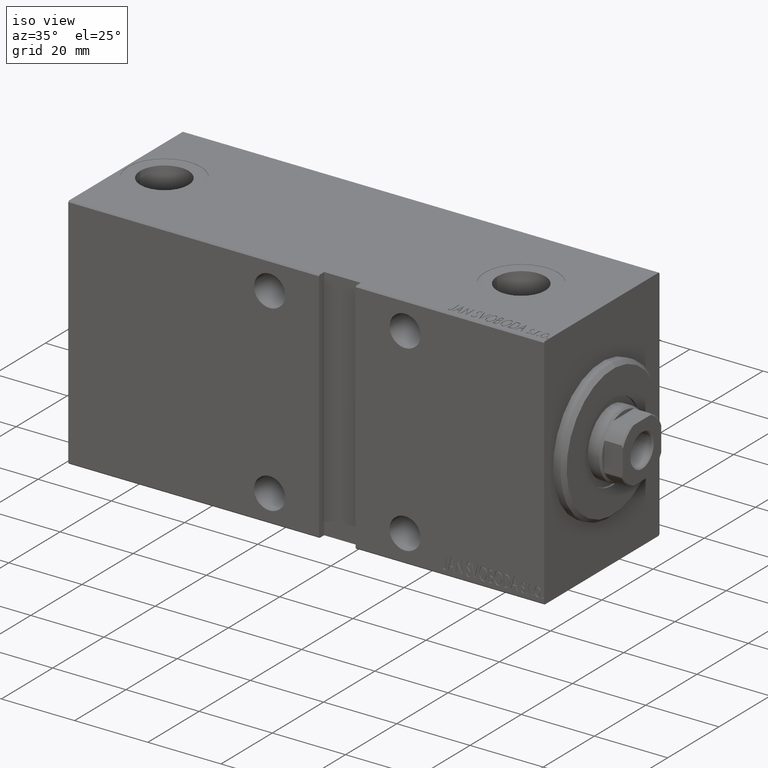
[diagram: clean part render]
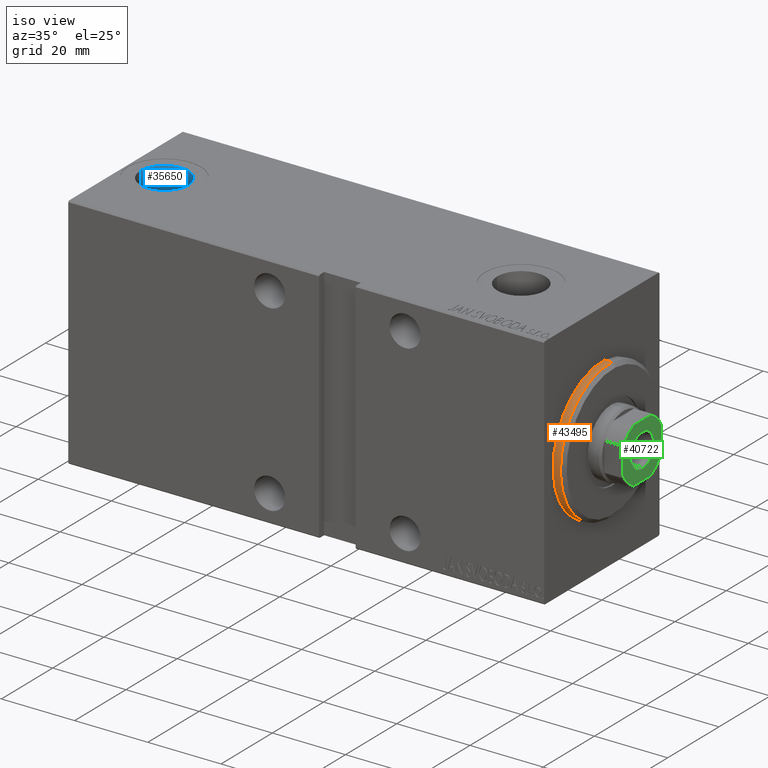
[diagram: same view with three faces highlighted in distinct colors, each labeled with its STEP entity id]
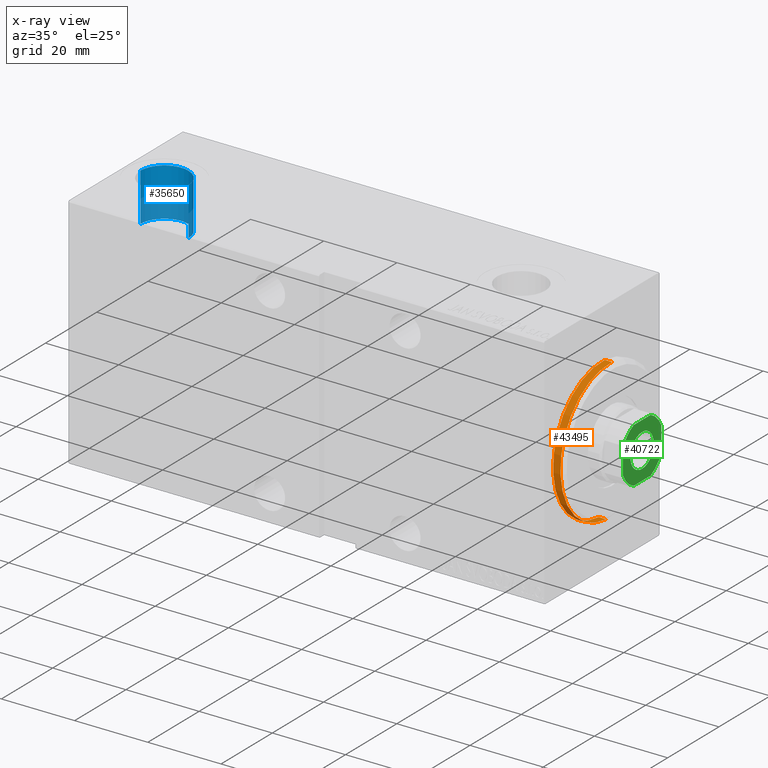
[diagram: x-ray of the same camera — body ghosted, the three highlighted faces saturated]
A machine part, iso view with three faces highlighted in distinct colors.
The next image is the same camera in x-ray (body ghosted, the three faces saturated) — at least one of them is partly hidden behind the body in this view.
Their STEP definitions:

[orange] entity #43495 — the highlighted cylindrical surface (partial cylindrical patch) has radius 19 mm, axis along (-1, 0, 0).
#24 = VERTEX_POINT ( 'NONE', #8285 ) ;
#263 = FACE_OUTER_BOUND ( 'NONE', #12023, .T. ) ;
#2552 = DIRECTION ( 'NONE',  ( 1.000000000000000000, -0.000000000000000000, 0.000000000000000000 ) ) ;
#3876 = DIRECTION ( 'NONE',  ( 0.000000000000000000, 0.000000000000000000, 1.000000000000000000 ) ) ;
#4487 = DIRECTION ( 'NONE',  ( 0.000000000000000000, 0.000000000000000000, -1.000000000000000000 ) ) ;
#4531 = DIRECTION ( 'NONE',  ( -1.000000000000000000, -0.000000000000000000, -0.000000000000000000 ) ) ;
#7107 = AXIS2_PLACEMENT_3D ( 'NONE', #25035, #4531, #3876 ) ;
#8285 = CARTESIAN_POINT ( 'NONE',  ( 0.000000000000000000, 2.326828918379970970E-15, -19.00000000000000000 ) ) ;
#8389 = VECTOR ( 'NONE', #40354, 1000.000000000000000 ) ;
#10122 = EDGE_CURVE ( 'NONE', #28320, #23205, #13445, .T. ) ;
#12023 = EDGE_LOOP ( 'NONE', ( #41900, #32387, #18588, #14901 ) ) ;
#12210 = CARTESIAN_POINT ( 'NONE',  ( 1.999999999999992228, 0.000000000000000000, 19.00000000000000000 ) ) ;
#12895 = CARTESIAN_POINT ( 'NONE',  ( 3.000000000000000000, 0.000000000000000000, 19.00000000000000000 ) ) ;
#13445 = CIRCLE ( 'NONE', #22060, 19.00000000000000000 ) ;
#14822 = VECTOR ( 'NONE', #39688, 1000.000000000000000 ) ;
#14901 = ORIENTED_EDGE ( 'NONE', *, *, #18478, .T. ) ;
#16013 = CIRCLE ( 'NONE', #38296, 19.00000000000000000 ) ;
#16680 = VERTEX_POINT ( 'NONE', #25679 ) ;
#18478 = EDGE_CURVE ( 'NONE', #16680, #24, #16013, .T. ) ;
#18588 = ORIENTED_EDGE ( 'NONE', *, *, #33789, .T. ) ;
#19441 = DIRECTION ( 'NONE',  ( 0.000000000000000000, 0.000000000000000000, -1.000000000000000000 ) ) ;
#19660 = LINE ( 'NONE', #12895, #8389 ) ;
#19878 = LINE ( 'NONE', #29115, #14822 ) ;
#20985 = CYLINDRICAL_SURFACE ( 'NONE', #7107, 19.00000000000000000 ) ;
#22060 = AXIS2_PLACEMENT_3D ( 'NONE', #25418, #39157, #4487 ) ;
#23205 = VERTEX_POINT ( 'NONE', #12210 ) ;
#25035 = CARTESIAN_POINT ( 'NONE',  ( 3.000000000000000000, 0.000000000000000000, 0.000000000000000000 ) ) ;
#25418 = CARTESIAN_POINT ( 'NONE',  ( 1.999999999999992228, 0.000000000000000000, 0.000000000000000000 ) ) ;
#25679 = CARTESIAN_POINT ( 'NONE',  ( 0.000000000000000000, 0.000000000000000000, 19.00000000000000000 ) ) ;
#28320 = VERTEX_POINT ( 'NONE', #29435 ) ;
#29115 = CARTESIAN_POINT ( 'NONE',  ( 3.000000000000000000, 2.326828918379970970E-15, -19.00000000000000000 ) ) ;
#29435 = CARTESIAN_POINT ( 'NONE',  ( 1.999999999999992228, 2.326828918379970970E-15, -19.00000000000000000 ) ) ;
#30012 = CARTESIAN_POINT ( 'NONE',  ( 0.000000000000000000, 0.000000000000000000, 0.000000000000000000 ) ) ;
#32387 = ORIENTED_EDGE ( 'NONE', *, *, #10122, .T. ) ;
#32975 = EDGE_CURVE ( 'NONE', #28320, #24, #19878, .T. ) ;
#33789 = EDGE_CURVE ( 'NONE', #23205, #16680, #19660, .T. ) ;
#38296 = AXIS2_PLACEMENT_3D ( 'NONE', #30012, #2552, #19441 ) ;
#39157 = DIRECTION ( 'NONE',  ( -1.000000000000000000, 0.000000000000000000, 0.000000000000000000 ) ) ;
#39688 = DIRECTION ( 'NONE',  ( -1.000000000000000000, -0.000000000000000000, -0.000000000000000000 ) ) ;
#40354 = DIRECTION ( 'NONE',  ( -1.000000000000000000, -0.000000000000000000, -0.000000000000000000 ) ) ;
#41900 = ORIENTED_EDGE ( 'NONE', *, *, #32975, .F. ) ;
#43495 = ADVANCED_FACE ( 'NONE', ( #263 ), #20985, .T. ) ;

[blue] entity #35650 — the highlighted cylindrical surface (edge-blend (fillet) strip) has radius 6.58 mm, axis along (0, -0, 1).
#1310 = CARTESIAN_POINT ( 'NONE',  ( 112.9199999999999733, -4.646170473516716904E-15, 19.23999999999999844 ) ) ;
#3037 = EDGE_CURVE ( 'NONE', #16401, #17301, #29636, .T. ) ;
#4065 = CARTESIAN_POINT ( 'NONE',  ( 112.9199999999999733, -4.646170473516716904E-15, 32.39999999999999858 ) ) ;
#4775 = VERTEX_POINT ( 'NONE', #4065 ) ;
#8456 = AXIS2_PLACEMENT_3D ( 'NONE', #34157, #35443, #27406 ) ;
#12730 = EDGE_LOOP ( 'NONE', ( #20339, #13063, #38432, #39603 ) ) ;
#12961 = DIRECTION ( 'NONE',  ( -0.000000000000000000, -0.000000000000000000, 1.000000000000000000 ) ) ;
#13063 = ORIENTED_EDGE ( 'NONE', *, *, #40874, .T. ) ;
#14497 = CARTESIAN_POINT ( 'NONE',  ( 119.5000000000000142, -5.451988067355678313E-15, 19.23999999999999844 ) ) ;
#15690 = CARTESIAN_POINT ( 'NONE',  ( 126.0800000000000267, -5.451988067355678313E-15, 19.23999999999999844 ) ) ;
#16401 = VERTEX_POINT ( 'NONE', #39475 ) ;
#17033 = EDGE_CURVE ( 'NONE', #4775, #17301, #34654, .T. ) ;
#17301 = VERTEX_POINT ( 'NONE', #20534 ) ;
#20003 = CARTESIAN_POINT ( 'NONE',  ( 112.9199999999999733, -4.646170473516716904E-15, 19.23999999999999844 ) ) ;
#20339 = ORIENTED_EDGE ( 'NONE', *, *, #20876, .F. ) ;
#20430 = FACE_OUTER_BOUND ( 'NONE', #12730, .T. ) ;
#20534 = CARTESIAN_POINT ( 'NONE',  ( 126.0800000000000267, -5.451988067355678313E-15, 32.39999999999999858 ) ) ;
#20699 = VECTOR ( 'NONE', #35535, 1000.000000000000000 ) ;
#20876 = EDGE_CURVE ( 'NONE', #37243, #16401, #29022, .T. ) ;
#21710 = CYLINDRICAL_SURFACE ( 'NONE', #8456, 6.580000000000016058 ) ;
#21798 = LINE ( 'NONE', #1310, #20699 ) ;
#21972 = VECTOR ( 'NONE', #12961, 1000.000000000000000 ) ;
#24685 = CARTESIAN_POINT ( 'NONE',  ( 119.5000000000000142, -5.451988067355678313E-15, 32.39999999999999858 ) ) ;
#25739 = DIRECTION ( 'NONE',  ( 0.000000000000000000, 0.000000000000000000, 1.000000000000000000 ) ) ;
#27394 = DIRECTION ( 'NONE',  ( 0.000000000000000000, 0.000000000000000000, 1.000000000000000000 ) ) ;
#27406 = DIRECTION ( 'NONE',  ( 1.000000000000000000, 0.000000000000000000, 0.000000000000000000 ) ) ;
#29022 = CIRCLE ( 'NONE', #41956, 6.580000000000016058 ) ;
#29636 = LINE ( 'NONE', #15690, #21972 ) ;
#31095 = AXIS2_PLACEMENT_3D ( 'NONE', #24685, #27394, #41801 ) ;
#32289 = DIRECTION ( 'NONE',  ( 1.000000000000000000, 0.000000000000000000, 0.000000000000000000 ) ) ;
#34157 = CARTESIAN_POINT ( 'NONE',  ( 119.5000000000000142, -5.451988067355678313E-15, 19.23999999999999844 ) ) ;
#34654 = CIRCLE ( 'NONE', #31095, 6.580000000000016058 ) ;
#35443 = DIRECTION ( 'NONE',  ( -0.000000000000000000, -0.000000000000000000, 1.000000000000000000 ) ) ;
#35535 = DIRECTION ( 'NONE',  ( -0.000000000000000000, -0.000000000000000000, 1.000000000000000000 ) ) ;
#35650 = ADVANCED_FACE ( 'NONE', ( #20430 ), #21710, .F. ) ;
#37243 = VERTEX_POINT ( 'NONE', #20003 ) ;
#38432 = ORIENTED_EDGE ( 'NONE', *, *, #17033, .T. ) ;
#39475 = CARTESIAN_POINT ( 'NONE',  ( 126.0800000000000267, -5.451988067355678313E-15, 19.23999999999999844 ) ) ;
#39603 = ORIENTED_EDGE ( 'NONE', *, *, #3037, .F. ) ;
#40874 = EDGE_CURVE ( 'NONE', #37243, #4775, #21798, .T. ) ;
#41801 = DIRECTION ( 'NONE',  ( 1.000000000000000000, 0.000000000000000000, 0.000000000000000000 ) ) ;
#41956 = AXIS2_PLACEMENT_3D ( 'NONE', #14497, #25739, #32289 ) ;

[green] entity #40722 — the highlighted planar face has unit normal (1, 0, -0).
#55 = ORIENTED_EDGE ( 'NONE', *, *, #19463, .T. ) ;
#324 = CIRCLE ( 'NONE', #15433, 8.200000000000025935 ) ;
#435 = CIRCLE ( 'NONE', #41414, 4.549999999999984723 ) ;
#470 = VERTEX_POINT ( 'NONE', #37709 ) ;
#1600 = EDGE_CURVE ( 'NONE', #11704, #18951, #38991, .T. ) ;
#2294 = ORIENTED_EDGE ( 'NONE', *, *, #1600, .T. ) ;
#2575 = CARTESIAN_POINT ( 'NONE',  ( 0.000000000000000000, 0.000000000000000000, 135.0000000000000000 ) ) ;
#3107 = AXIS2_PLACEMENT_3D ( 'NONE', #28683, #22578, #25954 ) ;
#3512 = CARTESIAN_POINT ( 'NONE',  ( -3.315116890850128950, -7.499999999999998224, 135.0000000000000000 ) ) ;
#4697 = LINE ( 'NONE', #31949, #30365 ) ;
#4758 = CIRCLE ( 'NONE', #6908, 8.199999999999986855 ) ;
#5991 = VERTEX_POINT ( 'NONE', #35083 ) ;
#6065 = CARTESIAN_POINT ( 'NONE',  ( -3.315116890850167586, 7.500000000000000888, 135.0000000000000000 ) ) ;
#6240 = DIRECTION ( 'NONE',  ( -0.000000000000000000, 0.000000000000000000, 1.000000000000000000 ) ) ;
#6908 = AXIS2_PLACEMENT_3D ( 'NONE', #42197, #11778, #11562 ) ;
#7275 = ORIENTED_EDGE ( 'NONE', *, *, #16729, .T. ) ;
#8452 = EDGE_CURVE ( 'NONE', #9180, #18013, #435, .T. ) ;
#9180 = VERTEX_POINT ( 'NONE', #21156 ) ;
#9524 = AXIS2_PLACEMENT_3D ( 'NONE', #37104, #6240, #24253 ) ;
#9899 = DIRECTION ( 'NONE',  ( -0.000000000000000000, 0.000000000000000000, 1.000000000000000000 ) ) ;
#10113 = DIRECTION ( 'NONE',  ( 1.000000000000000000, 0.000000000000000000, 0.000000000000000000 ) ) ;
#10289 = AXIS2_PLACEMENT_3D ( 'NONE', #10859, #34729, #13792 ) ;
#10859 = CARTESIAN_POINT ( 'NONE',  ( 0.000000000000000000, 0.000000000000000000, 135.0000000000000000 ) ) ;
#11484 = ORIENTED_EDGE ( 'NONE', *, *, #23681, .T. ) ;
#11562 = DIRECTION ( 'NONE',  ( 1.000000000000000000, 0.000000000000000000, 0.000000000000000000 ) ) ;
#11704 = VERTEX_POINT ( 'NONE', #3512 ) ;
#11778 = DIRECTION ( 'NONE',  ( -0.000000000000000000, 0.000000000000000000, 1.000000000000000000 ) ) ;
#12642 = EDGE_LOOP ( 'NONE', ( #14255, #26376 ) ) ;
#13792 = DIRECTION ( 'NONE',  ( 1.000000000000000000, 0.000000000000000000, 0.000000000000000000 ) ) ;
#14255 = ORIENTED_EDGE ( 'NONE', *, *, #24158, .T. ) ;
#15120 = DIRECTION ( 'NONE',  ( 1.000000000000000000, 0.000000000000000000, 0.000000000000000000 ) ) ;
#15433 = AXIS2_PLACEMENT_3D ( 'NONE', #40738, #9899, #10113 ) ;
#15770 = DIRECTION ( 'NONE',  ( -1.156482317317871478E-16, 1.000000000000000000, -0.000000000000000000 ) ) ;
#15883 = EDGE_CURVE ( 'NONE', #470, #43931, #22566, .T. ) ;
#16215 = LINE ( 'NONE', #22975, #32509 ) ;
#16309 = DIRECTION ( 'NONE',  ( 0.000000000000000000, -0.000000000000000000, -1.000000000000000000 ) ) ;
#16729 = EDGE_CURVE ( 'NONE', #19238, #31045, #16215, .T. ) ;
#17840 = EDGE_CURVE ( 'NONE', #5991, #42663, #4697, .T. ) ;
#17934 = EDGE_CURVE ( 'NONE', #42663, #470, #28228, .T. ) ;
#18013 = VERTEX_POINT ( 'NONE', #27399 ) ;
#18506 = CARTESIAN_POINT ( 'NONE',  ( -7.499999999999999112, -7.499999999999998224, 135.0000000000000000 ) ) ;
#18816 = VECTOR ( 'NONE', #33594, 1000.000000000000000 ) ;
#18951 = VERTEX_POINT ( 'NONE', #29407 ) ;
#19238 = VERTEX_POINT ( 'NONE', #24211 ) ;
#19463 = EDGE_CURVE ( 'NONE', #31045, #5991, #41923, .T. ) ;
#20280 = ORIENTED_EDGE ( 'NONE', *, *, #15883, .T. ) ;
#21156 = CARTESIAN_POINT ( 'NONE',  ( -4.549999999999984723, 5.572142936120437605E-16, 135.0000000000000000 ) ) ;
#22525 = CIRCLE ( 'NONE', #3107, 4.549999999999984723 ) ;
#22566 = LINE ( 'NONE', #23236, #18816 ) ;
#22578 = DIRECTION ( 'NONE',  ( 0.000000000000000000, -0.000000000000000000, -1.000000000000000000 ) ) ;
#22678 = VECTOR ( 'NONE', #15120, 1000.000000000000000 ) ;
#22975 = CARTESIAN_POINT ( 'NONE',  ( 7.499999999999997335, 7.500000000000000888, 135.0000000000000000 ) ) ;
#23236 = CARTESIAN_POINT ( 'NONE',  ( -7.500000000000001776, 7.500000000000001776, 135.0000000000000000 ) ) ;
#23402 = PLANE ( 'NONE',  #43717 ) ;
#23681 = EDGE_CURVE ( 'NONE', #18951, #19238, #324, .T. ) ;
#24158 = EDGE_CURVE ( 'NONE', #18013, #9180, #22525, .T. ) ;
#24211 = CARTESIAN_POINT ( 'NONE',  ( 7.499999999999998224, -3.315116890850224429, 135.0000000000000000 ) ) ;
#24253 = DIRECTION ( 'NONE',  ( 1.000000000000000000, 0.000000000000000000, 0.000000000000000000 ) ) ;
#25954 = DIRECTION ( 'NONE',  ( 1.000000000000000000, 0.000000000000000000, 0.000000000000000000 ) ) ;
#26105 = CARTESIAN_POINT ( 'NONE',  ( 0.000000000000000000, 0.000000000000000000, 135.0000000000000000 ) ) ;
#26376 = ORIENTED_EDGE ( 'NONE', *, *, #8452, .T. ) ;
#26772 = FACE_OUTER_BOUND ( 'NONE', #37979, .T. ) ;
#27235 = CARTESIAN_POINT ( 'NONE',  ( -7.499999999999999112, -3.315116890850124065, 135.0000000000000000 ) ) ;
#27399 = CARTESIAN_POINT ( 'NONE',  ( 4.549999999999984723, 0.000000000000000000, 135.0000000000000000 ) ) ;
#28228 = CIRCLE ( 'NONE', #9524, 8.200000000000006395 ) ;
#28573 = DIRECTION ( 'NONE',  ( -1.000000000000000000, 5.782411586589357392E-17, -0.000000000000000000 ) ) ;
#28683 = CARTESIAN_POINT ( 'NONE',  ( 0.000000000000000000, 0.000000000000000000, 135.0000000000000000 ) ) ;
#29407 = CARTESIAN_POINT ( 'NONE',  ( 3.315116890850226206, -7.499999999999996447, 135.0000000000000000 ) ) ;
#30035 = DIRECTION ( 'NONE',  ( 1.000000000000000000, 0.000000000000000000, 0.000000000000000000 ) ) ;
#30365 = VECTOR ( 'NONE', #28573, 1000.000000000000000 ) ;
#31045 = VERTEX_POINT ( 'NONE', #44050 ) ;
#31436 = ORIENTED_EDGE ( 'NONE', *, *, #32346, .T. ) ;
#31949 = CARTESIAN_POINT ( 'NONE',  ( -7.500000000000001776, 7.500000000000001776, 135.0000000000000000 ) ) ;
#32346 = EDGE_CURVE ( 'NONE', #43931, #11704, #4758, .T. ) ;
#32509 = VECTOR ( 'NONE', #15770, 1000.000000000000000 ) ;
#33594 = DIRECTION ( 'NONE',  ( 1.734723475976807094E-16, -1.000000000000000000, 0.000000000000000000 ) ) ;
#34729 = DIRECTION ( 'NONE',  ( -0.000000000000000000, 0.000000000000000000, 1.000000000000000000 ) ) ;
#34919 = ORIENTED_EDGE ( 'NONE', *, *, #17934, .T. ) ;
#35083 = CARTESIAN_POINT ( 'NONE',  ( 3.315116890850126286, 7.500000000000000888, 135.0000000000000000 ) ) ;
#36483 = DIRECTION ( 'NONE',  ( -0.000000000000000000, 0.000000000000000000, 1.000000000000000000 ) ) ;
#37104 = CARTESIAN_POINT ( 'NONE',  ( 0.000000000000000000, 0.000000000000000000, 135.0000000000000000 ) ) ;
#37709 = CARTESIAN_POINT ( 'NONE',  ( -7.500000000000000888, 3.315116890850168030, 135.0000000000000000 ) ) ;
#37979 = EDGE_LOOP ( 'NONE', ( #7275, #55, #38093, #34919, #20280, #31436, #2294, #11484 ) ) ;
#38093 = ORIENTED_EDGE ( 'NONE', *, *, #17840, .T. ) ;
#38991 = LINE ( 'NONE', #18506, #22678 ) ;
#40503 = DIRECTION ( 'NONE',  ( 1.000000000000000000, 0.000000000000000000, 0.000000000000000000 ) ) ;
#40722 = ADVANCED_FACE ( 'NONE', ( #43889, #26772 ), #23402, .T. ) ;
#40738 = CARTESIAN_POINT ( 'NONE',  ( 0.000000000000000000, 0.000000000000000000, 135.0000000000000000 ) ) ;
#41414 = AXIS2_PLACEMENT_3D ( 'NONE', #2575, #16309, #30035 ) ;
#41923 = CIRCLE ( 'NONE', #10289, 8.199999999999988631 ) ;
#42197 = CARTESIAN_POINT ( 'NONE',  ( 0.000000000000000000, 0.000000000000000000, 135.0000000000000000 ) ) ;
#42663 = VERTEX_POINT ( 'NONE', #6065 ) ;
#43717 = AXIS2_PLACEMENT_3D ( 'NONE', #26105, #36483, #40503 ) ;
#43889 = FACE_BOUND ( 'NONE', #12642, .T. ) ;
#43931 = VERTEX_POINT ( 'NONE', #27235 ) ;
#44050 = CARTESIAN_POINT ( 'NONE',  ( 7.499999999999998224, 3.315116890850132059, 135.0000000000000000 ) ) ;